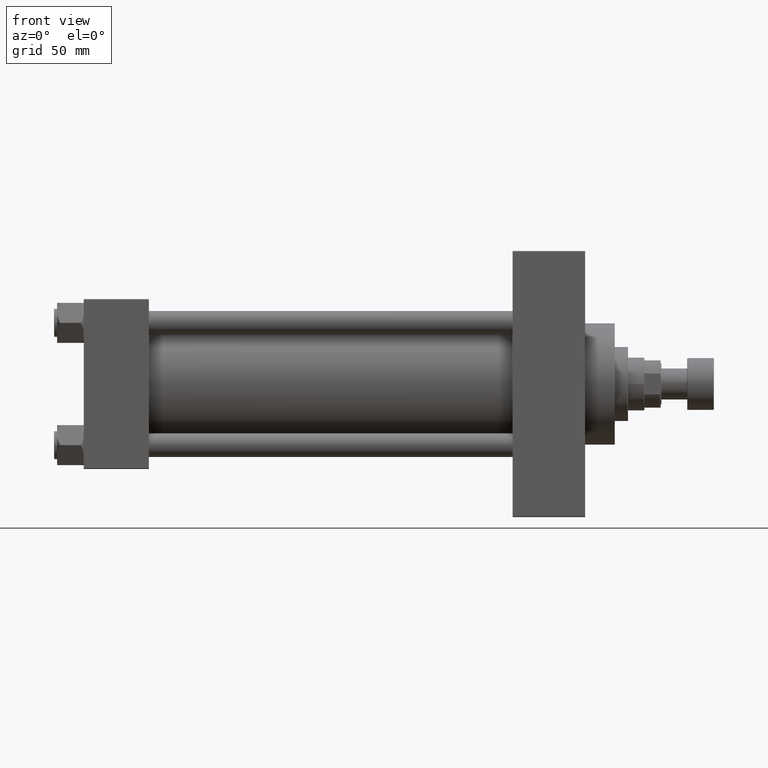
[diagram: clean part render]
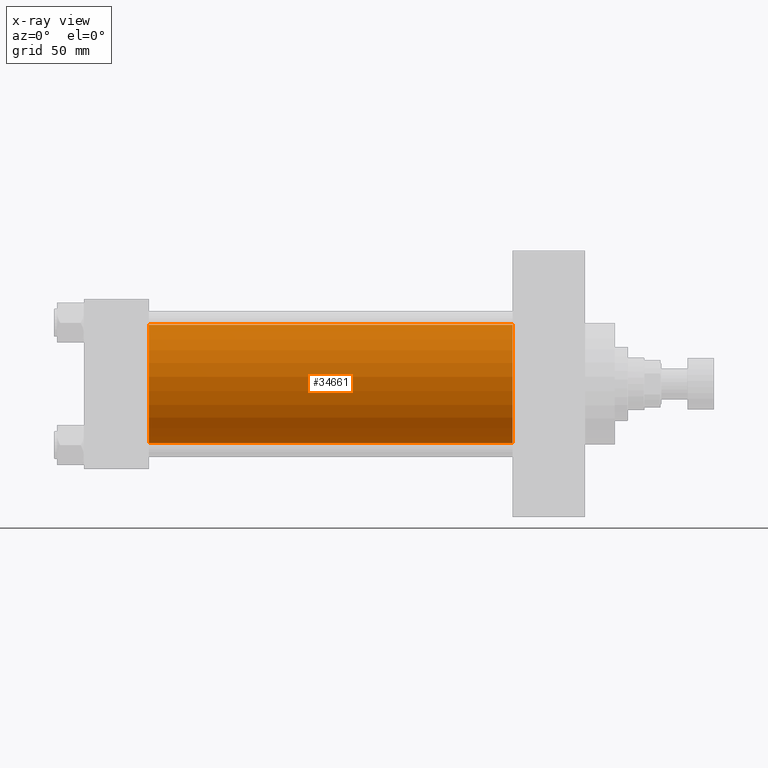
[diagram: x-ray — body ghosted, one internal face saturated and labeled with its STEP entity id]
A machine part, front view, then the same camera in x-ray: the body is ghosted and one INTERNAL B-rep face — a face not visible from any outside direction — is saturated and labeled: STEP entity #34661.
In plain terms, the highlighted cylindrical surface (partial cylindrical patch) has radius 40 mm, axis along (-1, -0, -0).
Its self-contained STEP definition (entity closure, byte-faithful):
#2039 = DIRECTION ( 'NONE',  ( -1.000000000000000000, -0.000000000000000000, -0.000000000000000000 ) ) ;
#3313 = ORIENTED_EDGE ( 'NONE', *, *, #45948, .F. ) ;
#3903 = VERTEX_POINT ( 'NONE', #47378 ) ;
#6748 = ORIENTED_EDGE ( 'NONE', *, *, #41379, .T. ) ;
#8261 = ORIENTED_EDGE ( 'NONE', *, *, #39992, .F. ) ;
#8833 = DIRECTION ( 'NONE',  ( 1.000000000000000000, 0.000000000000000000, 0.000000000000000000 ) ) ;
#9059 = CARTESIAN_POINT ( 'NONE',  ( 290.0000000000000000, -2.602085213965210642E-15, 40.00000000000000000 ) ) ;
#10430 = DIRECTION ( 'NONE',  ( 1.000000000000000000, 0.000000000000000000, 0.000000000000000000 ) ) ;
#11111 = DIRECTION ( 'NONE',  ( 0.000000000000000000, 0.000000000000000000, 1.000000000000000000 ) ) ;
#12942 = AXIS2_PLACEMENT_3D ( 'NONE', #16120, #8833, #38533 ) ;
#13684 = LINE ( 'NONE', #42932, #24059 ) ;
#14448 = LINE ( 'NONE', #32961, #19224 ) ;
#14520 = CYLINDRICAL_SURFACE ( 'NONE', #47888, 40.00000000000000000 ) ;
#16041 = CIRCLE ( 'NONE', #12942, 40.00000000000000000 ) ;
#16120 = CARTESIAN_POINT ( 'NONE',  ( 44.00000000000000000, -2.602085213965210642E-15, 0.000000000000000000 ) ) ;
#18436 = DIRECTION ( 'NONE',  ( -1.000000000000000000, -0.000000000000000000, -0.000000000000000000 ) ) ;
#19039 = VERTEX_POINT ( 'NONE', #27454 ) ;
#19224 = VECTOR ( 'NONE', #29307, 1000.000000000000000 ) ;
#19525 = VERTEX_POINT ( 'NONE', #34862 ) ;
#24059 = VECTOR ( 'NONE', #2039, 1000.000000000000000 ) ;
#25547 = DIRECTION ( 'NONE',  ( 0.000000000000000000, 0.000000000000000000, -1.000000000000000000 ) ) ;
#25712 = VERTEX_POINT ( 'NONE', #9059 ) ;
#27454 = CARTESIAN_POINT ( 'NONE',  ( 44.00000000000000000, 2.296501982624201990E-15, -40.00000000000000000 ) ) ;
#29135 = FACE_OUTER_BOUND ( 'NONE', #43767, .T. ) ;
#29183 = ORIENTED_EDGE ( 'NONE', *, *, #32291, .T. ) ;
#29307 = DIRECTION ( 'NONE',  ( -1.000000000000000000, -0.000000000000000000, -0.000000000000000000 ) ) ;
#32291 = EDGE_CURVE ( 'NONE', #25712, #3903, #32420, .T. ) ;
#32420 = CIRCLE ( 'NONE', #37088, 40.00000000000000000 ) ;
#32961 = CARTESIAN_POINT ( 'NONE',  ( 290.0000000000000000, 2.296501982624201990E-15, -40.00000000000000000 ) ) ;
#34661 = ADVANCED_FACE ( 'NONE', ( #29135 ), #14520, .F. ) ;
#34862 = CARTESIAN_POINT ( 'NONE',  ( 44.00000000000000000, -2.602085213965210642E-15, 40.00000000000000000 ) ) ;
#37088 = AXIS2_PLACEMENT_3D ( 'NONE', #40143, #10430, #25547 ) ;
#38533 = DIRECTION ( 'NONE',  ( 0.000000000000000000, 0.000000000000000000, -1.000000000000000000 ) ) ;
#39992 = EDGE_CURVE ( 'NONE', #19525, #19039, #16041, .T. ) ;
#40143 = CARTESIAN_POINT ( 'NONE',  ( 290.0000000000000000, -2.602085213965210642E-15, 0.000000000000000000 ) ) ;
#41379 = EDGE_CURVE ( 'NONE', #3903, #19039, #14448, .T. ) ;
#42932 = CARTESIAN_POINT ( 'NONE',  ( 290.0000000000000000, -2.602085213965210642E-15, 40.00000000000000000 ) ) ;
#43767 = EDGE_LOOP ( 'NONE', ( #29183, #6748, #8261, #3313 ) ) ;
#44472 = CARTESIAN_POINT ( 'NONE',  ( 290.0000000000000000, -2.602085213965210642E-15, 0.000000000000000000 ) ) ;
#45948 = EDGE_CURVE ( 'NONE', #25712, #19525, #13684, .T. ) ;
#47378 = CARTESIAN_POINT ( 'NONE',  ( 290.0000000000000000, 2.296501982624201990E-15, -40.00000000000000000 ) ) ;
#47888 = AXIS2_PLACEMENT_3D ( 'NONE', #44472, #18436, #11111 ) ;